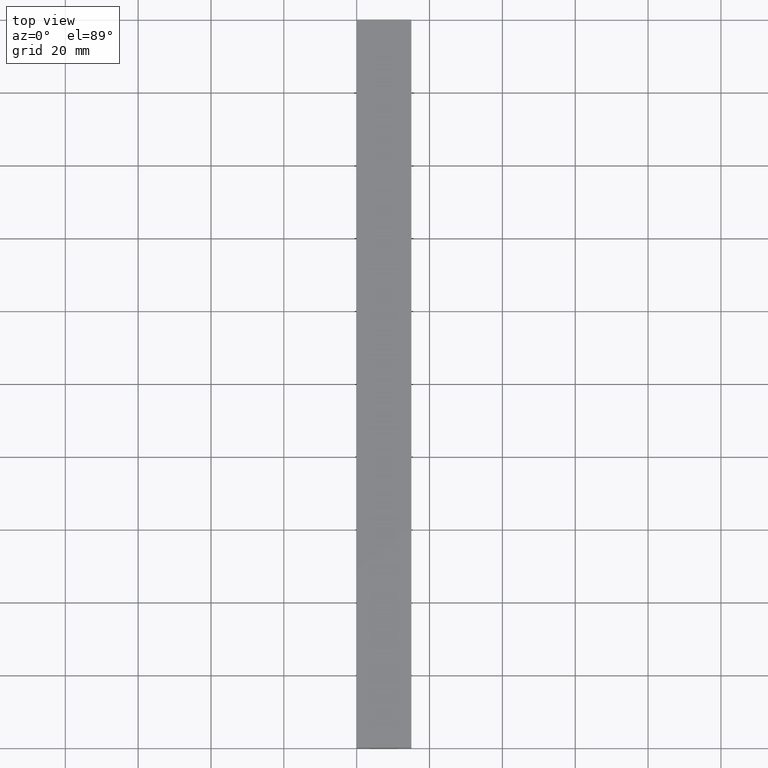
[diagram: clean part render]
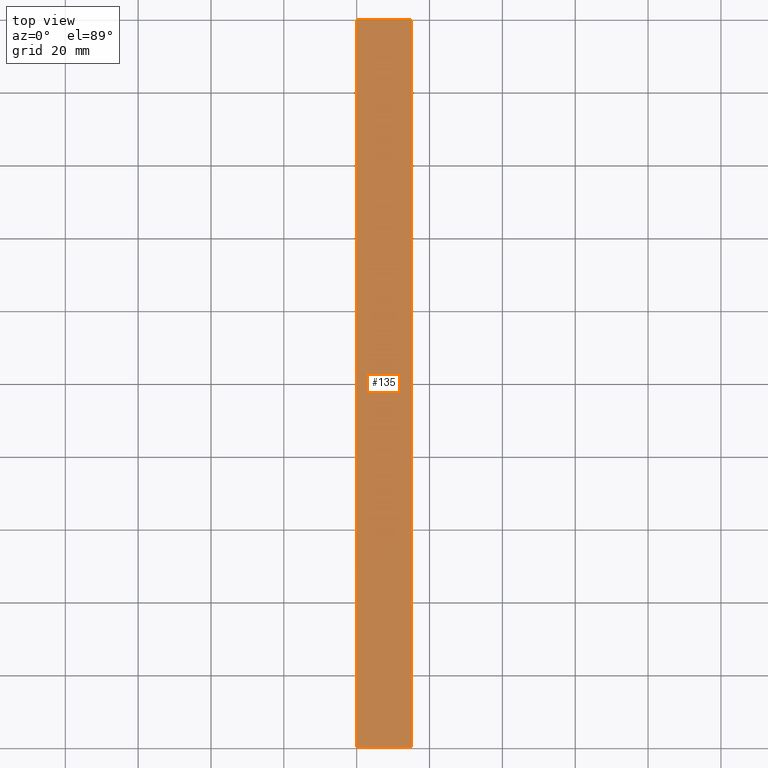
[diagram: same view with one face highlighted and labeled with its STEP entity id]
A machine part, top view. The second image highlights one B-rep face of the part: STEP entity #135.
In plain terms, the highlighted face is a freeform B-spline surface patch.
Its self-contained STEP definition (entity closure, byte-faithful):
#49=CARTESIAN_POINT('',(15.0,0.0,10.0));
#50=VERTEX_POINT('',#49);
#58=CARTESIAN_POINT('',(0.0,0.0,10.0));
#59=VERTEX_POINT('',#58);
#60=CARTESIAN_POINT('',(0.0,0.0,10.0));
#61=CARTESIAN_POINT('',(15.0,0.0,10.0));
#62=QUASI_UNIFORM_CURVE('',1,(#60,#61),.UNSPECIFIED.,.F.,.U.);
#63=EDGE_CURVE('',#59,#50,#62,.T.);
#85=CARTESIAN_POINT('',(15.0,200.0,10.0));
#86=VERTEX_POINT('',#85);
#101=CARTESIAN_POINT('',(0.0,200.0,10.0));
#102=VERTEX_POINT('',#101);
#108=CARTESIAN_POINT('',(0.0,200.0,10.0));
#109=CARTESIAN_POINT('',(15.0,200.0,10.0));
#110=QUASI_UNIFORM_CURVE('',1,(#108,#109),.UNSPECIFIED.,.F.,.U.);
#111=EDGE_CURVE('',#102,#86,#110,.T.);
#116=CARTESIAN_POINT('',(15.749249970927091,-9.989999612361194,10.0));
#117=CARTESIAN_POINT('',(-0.749250373258442,-9.989999612361194,10.0));
#118=CARTESIAN_POINT('',(15.749249970927091,209.990004976779200,10.0));
#119=CARTESIAN_POINT('',(-0.749250373258442,209.990004976779200,10.0));
#120=B_SPLINE_SURFACE_WITH_KNOTS('',1,1,((#116,#118),(#117,#119)),.UNSPECIFIED.,.F.,.F.,.U.,(2,2),(2,2),(0.0,16.498500344185530),(0.0,219.980004589140410),.UNSPECIFIED.);
#121=ORIENTED_EDGE('',*,*,#63,.T.);
#122=CARTESIAN_POINT('',(15.0,200.0,10.0));
#123=CARTESIAN_POINT('',(15.0,0.0,10.0));
#124=QUASI_UNIFORM_CURVE('',1,(#122,#123),.UNSPECIFIED.,.F.,.U.);
#125=EDGE_CURVE('',#86,#50,#124,.T.);
#126=ORIENTED_EDGE('',*,*,#125,.F.);
#127=ORIENTED_EDGE('',*,*,#111,.F.);
#128=CARTESIAN_POINT('',(0.0,200.0,10.0));
#129=CARTESIAN_POINT('',(0.0,0.0,10.0));
#130=QUASI_UNIFORM_CURVE('',1,(#128,#129),.UNSPECIFIED.,.F.,.U.);
#131=EDGE_CURVE('',#102,#59,#130,.T.);
#132=ORIENTED_EDGE('',*,*,#131,.T.);
#133=EDGE_LOOP('',(#121,#126,#127,#132));
#134=FACE_OUTER_BOUND('',#133,.T.);
#135=ADVANCED_FACE('',(#134),#120,.F.);